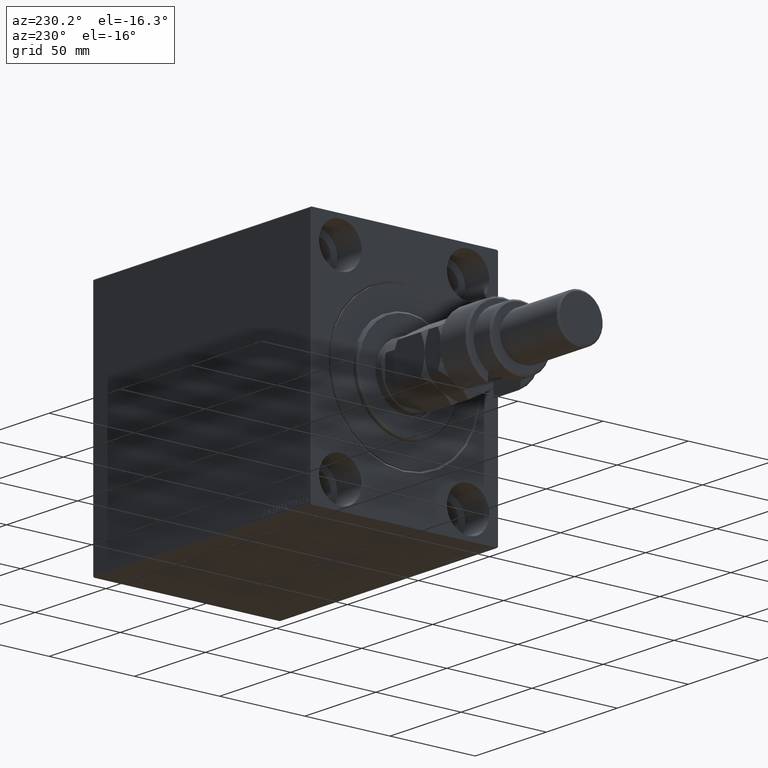
[diagram: clean part render]
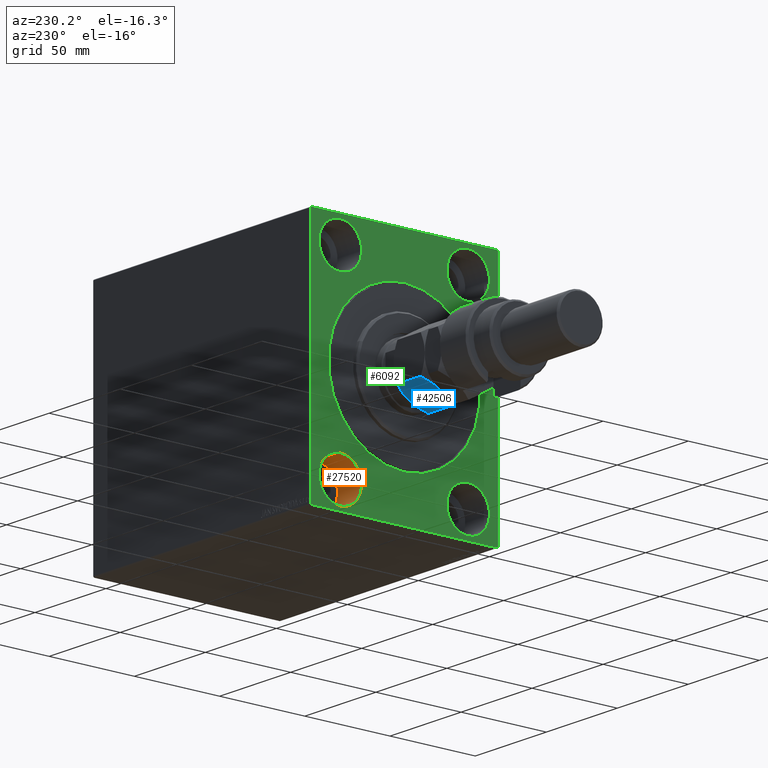
[diagram: same view with three faces highlighted in distinct colors, each labeled with its STEP entity id]
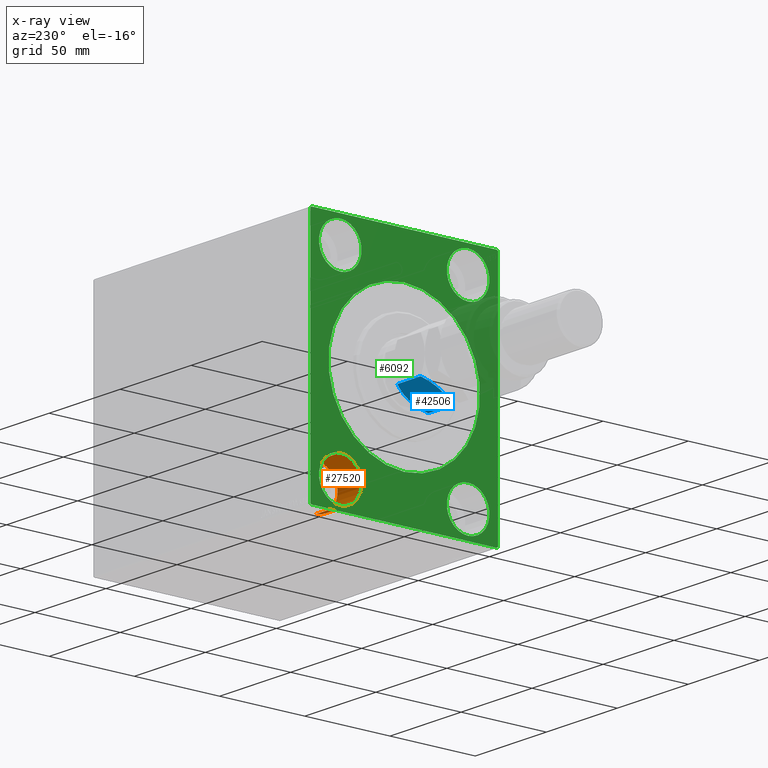
[diagram: x-ray of the same camera — body ghosted, the three highlighted faces saturated]
A machine part, auxiliary view with three faces highlighted in distinct colors.
The next image is the same camera in x-ray (body ghosted, the three faces saturated) — at least one of them is partly hidden behind the body in this view.
Their STEP definitions:

[orange] entity #27520 — the highlighted cylindrical surface (edge-blend (fillet) strip) has radius 12.5 mm, axis along (-1, -0, -0).
#1134 = ORIENTED_EDGE ( 'NONE', *, *, #32560, .T. ) ;
#1769 = EDGE_CURVE ( 'NONE', #6520, #29818, #35650, .T. ) ;
#4736 = CARTESIAN_POINT ( 'NONE',  ( 17.00000000000000000, 37.49999999999997868, -42.49999999999999289 ) ) ;
#6132 = CARTESIAN_POINT ( 'NONE',  ( 0.000000000000000000, 37.49999999999997868, -67.49999999999998579 ) ) ;
#6520 = VERTEX_POINT ( 'NONE', #38790 ) ;
#7239 = EDGE_CURVE ( 'NONE', #6520, #34621, #45471, .T. ) ;
#7569 = CARTESIAN_POINT ( 'NONE',  ( 17.00000000000000000, 37.49999999999997868, -42.49999999999999289 ) ) ;
#9159 = ORIENTED_EDGE ( 'NONE', *, *, #29859, .F. ) ;
#9512 = DIRECTION ( 'NONE',  ( 0.000000000000000000, 0.000000000000000000, 1.000000000000000000 ) ) ;
#10040 = EDGE_LOOP ( 'NONE', ( #43298, #14693, #1134, #9159 ) ) ;
#12100 = CIRCLE ( 'NONE', #24912, 12.49999999999999645 ) ;
#13351 = CARTESIAN_POINT ( 'NONE',  ( 17.00000000000000000, 37.49999999999997868, -67.49999999999998579 ) ) ;
#14693 = ORIENTED_EDGE ( 'NONE', *, *, #7239, .T. ) ;
#15293 = AXIS2_PLACEMENT_3D ( 'NONE', #18142, #29723, #43653 ) ;
#18142 = CARTESIAN_POINT ( 'NONE',  ( 17.00000000000000000, 37.49999999999997868, -54.99999999999999289 ) ) ;
#18283 = VECTOR ( 'NONE', #35523, 1000.000000000000000 ) ;
#20616 = DIRECTION ( 'NONE',  ( -1.000000000000000000, 0.000000000000000000, 0.000000000000000000 ) ) ;
#22040 = CARTESIAN_POINT ( 'NONE',  ( 0.000000000000000000, 37.49999999999997868, -42.49999999999999289 ) ) ;
#24912 = AXIS2_PLACEMENT_3D ( 'NONE', #41863, #20616, #9512 ) ;
#27520 = ADVANCED_FACE ( 'NONE', ( #31782 ), #42424, .F. ) ;
#27764 = AXIS2_PLACEMENT_3D ( 'NONE', #28474, #43107, #38881 ) ;
#28474 = CARTESIAN_POINT ( 'NONE',  ( 17.00000000000000000, 37.49999999999997868, -54.99999999999999289 ) ) ;
#29723 = DIRECTION ( 'NONE',  ( -1.000000000000000000, 0.000000000000000000, 0.000000000000000000 ) ) ;
#29818 = VERTEX_POINT ( 'NONE', #4736 ) ;
#29859 = EDGE_CURVE ( 'NONE', #29818, #34468, #43464, .T. ) ;
#31586 = VECTOR ( 'NONE', #36374, 1000.000000000000000 ) ;
#31782 = FACE_OUTER_BOUND ( 'NONE', #10040, .T. ) ;
#32560 = EDGE_CURVE ( 'NONE', #34621, #34468, #12100, .T. ) ;
#34468 = VERTEX_POINT ( 'NONE', #22040 ) ;
#34621 = VERTEX_POINT ( 'NONE', #6132 ) ;
#35523 = DIRECTION ( 'NONE',  ( -1.000000000000000000, -0.000000000000000000, -0.000000000000000000 ) ) ;
#35650 = CIRCLE ( 'NONE', #15293, 12.49999999999999645 ) ;
#36374 = DIRECTION ( 'NONE',  ( -1.000000000000000000, -0.000000000000000000, -0.000000000000000000 ) ) ;
#38790 = CARTESIAN_POINT ( 'NONE',  ( 17.00000000000000000, 37.49999999999997868, -67.49999999999998579 ) ) ;
#38881 = DIRECTION ( 'NONE',  ( 0.000000000000000000, 0.000000000000000000, 1.000000000000000000 ) ) ;
#41863 = CARTESIAN_POINT ( 'NONE',  ( 0.000000000000000000, 37.49999999999997868, -54.99999999999999289 ) ) ;
#42424 = CYLINDRICAL_SURFACE ( 'NONE', #27764, 12.49999999999999645 ) ;
#43107 = DIRECTION ( 'NONE',  ( -1.000000000000000000, -0.000000000000000000, -0.000000000000000000 ) ) ;
#43298 = ORIENTED_EDGE ( 'NONE', *, *, #1769, .F. ) ;
#43464 = LINE ( 'NONE', #7569, #31586 ) ;
#43653 = DIRECTION ( 'NONE',  ( 0.000000000000000000, 0.000000000000000000, 1.000000000000000000 ) ) ;
#45471 = LINE ( 'NONE', #13351, #18283 ) ;

[blue] entity #42506 — the highlighted planar face has unit normal (0, -0.5, 0.866).
#646 = CARTESIAN_POINT ( 'NONE',  ( -18.00000000000000000, 10.39230484541327293, 22.00000000000000000 ) ) ;
#1128 = VERTEX_POINT ( 'NONE', #39122 ) ;
#1941 = CARTESIAN_POINT ( 'NONE',  ( -18.00000000000000000, -7.070713019734865767, 20.67653729751676650 ) ) ;
#2437 = CARTESIAN_POINT ( 'NONE',  ( -18.00000000000000000, 0.000000000000000000, 0.000000000000000000 ) ) ;
#2472 = AXIS2_PLACEMENT_3D ( 'NONE', #646, #6790, #15045 ) ;
#2573 = CARTESIAN_POINT ( 'NONE',  ( -18.00000000000000355, 0.4570166227920097191, -1.873996868329094797E-14 ) ) ;
#2651 = CARTESIAN_POINT ( 'NONE',  ( -18.00000000000000000, 9.585738860786747750, 19.61867330148673716 ) ) ;
#2807 = CARTESIAN_POINT ( 'NONE',  ( -18.00000000000000000, 2.269920501599953511, 0.1372108013979898844 ) ) ;
#2906 = CARTESIAN_POINT ( 'NONE',  ( -17.99999999999999645, -7.496347219517973670, 1.494764402970788497 ) ) ;
#3927 = ORIENTED_EDGE ( 'NONE', *, *, #16804, .T. ) ;
#5133 = CARTESIAN_POINT ( 'NONE',  ( -18.00000000000000000, 0.000000000000000000, 0.000000000000000000 ) ) ;
#5238 = CARTESIAN_POINT ( 'NONE',  ( -18.00000000000000000, -4.484118396622227110, 21.46845322619605767 ) ) ;
#5747 = CARTESIAN_POINT ( 'NONE',  ( -18.00000000000000000, -3.606961701950821109, 0.2821992827987603869 ) ) ;
#5894 = VERTEX_POINT ( 'NONE', #35411 ) ;
#6106 = CARTESIAN_POINT ( 'NONE',  ( -17.99999999999999645, 1.820915739938816502, 0.08623745797432426363 ) ) ;
#6187 = CARTESIAN_POINT ( 'NONE',  ( -17.99999999999999289, 7.496347219517978999, 20.50523559702920195 ) ) ;
#6790 = DIRECTION ( 'NONE',  ( 1.000000000000000000, 0.000000000000000000, -0.000000000000000000 ) ) ;
#9124 = ORIENTED_EDGE ( 'NONE', *, *, #41015, .F. ) ;
#9704 = EDGE_CURVE ( 'NONE', #26809, #12539, #42539, .T. ) ;
#9728 = CARTESIAN_POINT ( 'NONE',  ( -18.00000000000000000, 10.39230484541327293, 19.21539030917347546 ) ) ;
#9953 = CARTESIAN_POINT ( 'NONE',  ( -17.99999999999999645, 5.777644679957247398, 21.10005375890244039 ) ) ;
#9976 = CARTESIAN_POINT ( 'NONE',  ( -18.00000000000000000, -7.068075135443438128, 1.333788718270820350 ) ) ;
#10018 = LINE ( 'NONE', #35512, #44214 ) ;
#12539 = VERTEX_POINT ( 'NONE', #27527 ) ;
#12551 = CARTESIAN_POINT ( 'NONE',  ( -18.00000000000000000, -9.585844502997481698, 19.61862048038136308 ) ) ;
#13294 = CARTESIAN_POINT ( 'NONE',  ( -18.00000000000000355, -1.830228188859414518, -1.798420353610330795E-14 ) ) ;
#14292 = CARTESIAN_POINT ( 'NONE',  ( -18.00000000000000000, 10.39230484541327293, 19.21539030917347546 ) ) ;
#15045 = DIRECTION ( 'NONE',  ( -0.000000000000000000, 0.000000000000000000, -1.000000000000000000 ) ) ;
#16088 = ORIENTED_EDGE ( 'NONE', *, *, #46229, .F. ) ;
#16127 = CARTESIAN_POINT ( 'NONE',  ( -18.00000000000000355, 1.830228188859417182, 22.00000000000001776 ) ) ;
#16504 = VERTEX_POINT ( 'NONE', #25883 ) ;
#16560 = CARTESIAN_POINT ( 'NONE',  ( -18.00000000000000000, -1.820915739938815392, 21.91376254202566543 ) ) ;
#16647 = LINE ( 'NONE', #44763, #30480 ) ;
#16804 = EDGE_CURVE ( 'NONE', #27554, #12539, #10018, .T. ) ;
#16967 = CARTESIAN_POINT ( 'NONE',  ( -18.00000000000000000, 9.585844502997485250, 2.381379519618630702 ) ) ;
#17023 = CARTESIAN_POINT ( 'NONE',  ( -18.00000000000000355, -3.606660380382266329, 21.66338348051975871 ) ) ;
#17065 = CARTESIAN_POINT ( 'NONE',  ( -18.00000000000000000, -9.585738860786737092, 2.381326698513256179 ) ) ;
#17198 = CARTESIAN_POINT ( 'NONE',  ( -18.00000000000000000, 0.000000000000000000, 0.000000000000000000 ) ) ;
#18906 = B_SPLINE_CURVE_WITH_KNOTS ( 'NONE', 3,
 ( #41871, #17065, #20622, #2906, #9976, #45179, #27242, #5747, #13294, #2437 ),
 .UNSPECIFIED., .F., .F.,
 ( 4, 2, 2, 2, 4 ),
 ( 0.02782233635826646123, 0.03053256470195757008, 0.03188767887380312277, 0.03324279304564867893, 0.03866324973303089663 ),
 .UNSPECIFIED. ) ;
#19482 = ORIENTED_EDGE ( 'NONE', *, *, #39287, .F. ) ;
#19642 = CARTESIAN_POINT ( 'NONE',  ( -18.00000000000000711, -6.216134505391694098, 20.97498393630432645 ) ) ;
#19662 = CARTESIAN_POINT ( 'NONE',  ( -18.00000000000000355, 3.606961701950826438, 21.71780071720124283 ) ) ;
#19730 = EDGE_CURVE ( 'NONE', #16504, #5894, #20522, .T. ) ;
#19968 = DIRECTION ( 'NONE',  ( -0.000000000000000000, -0.000000000000000000, -1.000000000000000000 ) ) ;
#20513 = CARTESIAN_POINT ( 'NONE',  ( -17.99999999999999645, 7.070713019734868432, 1.323462702483232833 ) ) ;
#20522 = B_SPLINE_CURVE_WITH_KNOTS ( 'NONE', 3,
 ( #20576, #37580, #37810, #16560, #30498, #17023, #5238, #19642, #1941, #31191, #12551, #30958 ),
 .UNSPECIFIED., .F., .F.,
 ( 4, 2, 2, 2, 2, 4 ),
 ( 0.03866324973303091050, 0.04001676336829057545, 0.04137027700355024040, 0.04407730427406957724, 0.04678433154458891408, 0.04949135881510824397 ),
 .UNSPECIFIED. ) ;
#20576 = CARTESIAN_POINT ( 'NONE',  ( -17.99999999999999645, 0.000000000000000000, 22.00000000000000000 ) ) ;
#20603 = CARTESIAN_POINT ( 'NONE',  ( -17.99999999999999645, 7.068075135443441681, 20.66621128172916499 ) ) ;
#20622 = CARTESIAN_POINT ( 'NONE',  ( -18.00000000000000000, -8.763088818352413156, 2.004854301028774266 ) ) ;
#20977 = CARTESIAN_POINT ( 'NONE',  ( -18.00000000000000711, 3.606660380382270326, 0.3366165194802389071 ) ) ;
#21355 = EDGE_LOOP ( 'NONE', ( #9124, #16088, #33853, #19482, #3927, #33514 ) ) ;
#24602 = B_SPLINE_CURVE_WITH_KNOTS ( 'NONE', 3,
 ( #9728, #2651, #38528, #6187, #20603, #45854, #9953, #19662, #16127, #44935 ),
 .UNSPECIFIED., .F., .F.,
 ( 4, 2, 2, 2, 4 ),
 ( 0.02782233635826646123, 0.03053256470195757355, 0.03188767887380312971, 0.03324279304564868587, 0.03866324973303091050 ),
 .UNSPECIFIED. ) ;
#25883 = CARTESIAN_POINT ( 'NONE',  ( -17.99999999999999645, 0.000000000000000000, 22.00000000000000000 ) ) ;
#26809 = VERTEX_POINT ( 'NONE', #5133 ) ;
#27242 = CARTESIAN_POINT ( 'NONE',  ( -18.00000000000000355, -5.777644679957243845, 0.8999462410975485049 ) ) ;
#27527 = CARTESIAN_POINT ( 'NONE',  ( -18.00000000000000000, 10.39230484541327115, 2.784609690826521433 ) ) ;
#27554 = VERTEX_POINT ( 'NONE', #14292 ) ;
#30480 = VECTOR ( 'NONE', #19968, 1000.000000000000000 ) ;
#30498 = CARTESIAN_POINT ( 'NONE',  ( -18.00000000000000000, -2.269920501599952622, 21.86278919860200531 ) ) ;
#30958 = CARTESIAN_POINT ( 'NONE',  ( -18.00000000000000000, -10.39230484541326582, 19.21539030917347901 ) ) ;
#31130 = CARTESIAN_POINT ( 'NONE',  ( -17.99999999999999645, 0.9155406990339314266, 0.01761543672925007520 ) ) ;
#31191 = CARTESIAN_POINT ( 'NONE',  ( -18.00000000000000355, -8.761367480501970562, 19.99593070559867414 ) ) ;
#31592 = CARTESIAN_POINT ( 'NONE',  ( -18.00000000000000000, 6.216134505391694098, 1.025016063695673774 ) ) ;
#32989 = PLANE ( 'NONE',  #2472 ) ;
#33514 = ORIENTED_EDGE ( 'NONE', *, *, #9704, .F. ) ;
#33853 = ORIENTED_EDGE ( 'NONE', *, *, #19730, .F. ) ;
#35055 = DIRECTION ( 'NONE',  ( -0.000000000000000000, -0.000000000000000000, -1.000000000000000000 ) ) ;
#35373 = CARTESIAN_POINT ( 'NONE',  ( -18.00000000000000355, 4.484118396622230662, 0.5315467738039389989 ) ) ;
#35411 = CARTESIAN_POINT ( 'NONE',  ( -18.00000000000000000, -10.39230484541326582, 19.21539030917347901 ) ) ;
#35512 = CARTESIAN_POINT ( 'NONE',  ( -18.00000000000000000, 10.39230484541327293, 22.00000000000000000 ) ) ;
#37580 = CARTESIAN_POINT ( 'NONE',  ( -18.00000000000000355, -0.4570166227920087199, 22.00000000000001421 ) ) ;
#37810 = CARTESIAN_POINT ( 'NONE',  ( -18.00000000000000000, -0.9155406990339308715, 21.98238456327074530 ) ) ;
#38528 = CARTESIAN_POINT ( 'NONE',  ( -18.00000000000000000, 8.763088818352416709, 19.99514569897121774 ) ) ;
#39122 = CARTESIAN_POINT ( 'NONE',  ( -18.00000000000000000, -10.39230484541326582, 2.784609690826517436 ) ) ;
#39287 = EDGE_CURVE ( 'NONE', #27554, #16504, #24602, .T. ) ;
#40068 = FACE_OUTER_BOUND ( 'NONE', #21355, .T. ) ;
#41015 = EDGE_CURVE ( 'NONE', #1128, #26809, #18906, .T. ) ;
#41871 = CARTESIAN_POINT ( 'NONE',  ( -18.00000000000000000, -10.39230484541326582, 2.784609690826517436 ) ) ;
#42466 = CARTESIAN_POINT ( 'NONE',  ( -18.00000000000000355, 8.761367480501975891, 2.004069294401323198 ) ) ;
#42506 = ADVANCED_FACE ( 'NONE', ( #40068 ), #32989, .F. ) ;
#42539 = B_SPLINE_CURVE_WITH_KNOTS ( 'NONE', 3,
 ( #17198, #2573, #31130, #6106, #2807, #20977, #35373, #31592, #20513, #42466, #16967, #46002 ),
 .UNSPECIFIED., .F., .F.,
 ( 4, 2, 2, 2, 2, 4 ),
 ( 0.03866324973303089663, 0.04001676336829056158, 0.04137027700355023346, 0.04407730427406956336, 0.04678433154458890020, 0.04949135881510823010 ),
 .UNSPECIFIED. ) ;
#44214 = VECTOR ( 'NONE', #35055, 1000.000000000000000 ) ;
#44763 = CARTESIAN_POINT ( 'NONE',  ( -18.00000000000000000, -10.39230484541326582, 22.00000000000000000 ) ) ;
#44935 = CARTESIAN_POINT ( 'NONE',  ( -17.99999999999999645, 0.000000000000000000, 22.00000000000000000 ) ) ;
#45179 = CARTESIAN_POINT ( 'NONE',  ( -18.00000000000000000, -6.209292796908479239, 1.036623049275358754 ) ) ;
#45854 = CARTESIAN_POINT ( 'NONE',  ( -18.00000000000000711, 6.209292796908482792, 20.96337695072463703 ) ) ;
#46002 = CARTESIAN_POINT ( 'NONE',  ( -18.00000000000000000, 10.39230484541327115, 2.784609690826521433 ) ) ;
#46229 = EDGE_CURVE ( 'NONE', #5894, #1128, #16647, .T. ) ;

[green] entity #6092 — the highlighted planar face has unit normal (1, 0, 0).
#613 = ORIENTED_EDGE ( 'NONE', *, *, #9912, .T. ) ;
#785 = ORIENTED_EDGE ( 'NONE', *, *, #3620, .F. ) ;
#1200 = CARTESIAN_POINT ( 'NONE',  ( 0.000000000000000000, 37.50000000000000711, 42.50000000000000711 ) ) ;
#1426 = CARTESIAN_POINT ( 'NONE',  ( 0.000000000000000000, 0.000000000000000000, 44.50000000000004263 ) ) ;
#1513 = EDGE_LOOP ( 'NONE', ( #41069, #33114 ) ) ;
#1795 = AXIS2_PLACEMENT_3D ( 'NONE', #10402, #32350, #39209 ) ;
#2760 = ORIENTED_EDGE ( 'NONE', *, *, #38961, .F. ) ;
#2927 = VERTEX_POINT ( 'NONE', #41761 ) ;
#3081 = CARTESIAN_POINT ( 'NONE',  ( 0.000000000000000000, 37.50000000000000711, 55.00000000000000711 ) ) ;
#3367 = DIRECTION ( 'NONE',  ( -1.000000000000000000, 0.000000000000000000, 0.000000000000000000 ) ) ;
#3500 = VERTEX_POINT ( 'NONE', #17528 ) ;
#3620 = EDGE_CURVE ( 'NONE', #34468, #34621, #21366, .T. ) ;
#4529 = CARTESIAN_POINT ( 'NONE',  ( 0.000000000000000000, -55.00000000000000711, 69.99999999999998579 ) ) ;
#4637 = FACE_BOUND ( 'NONE', #1513, .T. ) ;
#4721 = ORIENTED_EDGE ( 'NONE', *, *, #34698, .F. ) ;
#4773 = DIRECTION ( 'NONE',  ( -1.000000000000000000, 0.000000000000000000, 0.000000000000000000 ) ) ;
#4791 = VERTEX_POINT ( 'NONE', #17176 ) ;
#4793 = CARTESIAN_POINT ( 'NONE',  ( 0.000000000000000000, -37.50000000000002132, -67.49999999999998579 ) ) ;
#4885 = CARTESIAN_POINT ( 'NONE',  ( 0.000000000000000000, 54.49999999999999289, 70.00000000000000000 ) ) ;
#5207 = CARTESIAN_POINT ( 'NONE',  ( 0.000000000000000000, -54.50000000000000711, 69.99999999999998579 ) ) ;
#5577 = DIRECTION ( 'NONE',  ( 0.000000000000000000, 0.000000000000000000, -1.000000000000000000 ) ) ;
#5884 = AXIS2_PLACEMENT_3D ( 'NONE', #16265, #30185, #26662 ) ;
#5904 = VERTEX_POINT ( 'NONE', #31629 ) ;
#6092 = ADVANCED_FACE ( 'NONE', ( #30367, #12414, #45012, #8887, #4637, #12652 ), #41466, .F. ) ;
#6132 = CARTESIAN_POINT ( 'NONE',  ( 0.000000000000000000, 37.49999999999997868, -67.49999999999998579 ) ) ;
#6206 = DIRECTION ( 'NONE',  ( -0.000000000000000000, 0.7071067811865474617, -0.7071067811865474617 ) ) ;
#6437 = LINE ( 'NONE', #28156, #26577 ) ;
#6866 = AXIS2_PLACEMENT_3D ( 'NONE', #31272, #38124, #20415 ) ;
#7285 = DIRECTION ( 'NONE',  ( 0.000000000000000000, -1.000000000000000000, -1.261617073437677999E-16 ) ) ;
#7590 = VECTOR ( 'NONE', #35271, 1000.000000000000000 ) ;
#7879 = VERTEX_POINT ( 'NONE', #4885 ) ;
#8092 = EDGE_CURVE ( 'NONE', #25248, #41943, #10042, .T. ) ;
#8704 = LINE ( 'NONE', #44827, #24150 ) ;
#8887 = FACE_BOUND ( 'NONE', #13758, .T. ) ;
#8934 = CARTESIAN_POINT ( 'NONE',  ( 0.000000000000000000, -37.50000000000002132, -42.49999999999999289 ) ) ;
#9110 = CARTESIAN_POINT ( 'NONE',  ( 0.000000000000000000, 0.000000000000000000, 0.000000000000000000 ) ) ;
#9141 = ORIENTED_EDGE ( 'NONE', *, *, #25436, .T. ) ;
#9230 = EDGE_CURVE ( 'NONE', #16322, #22450, #32631, .T. ) ;
#9338 = EDGE_CURVE ( 'NONE', #12873, #34969, #10031, .T. ) ;
#9512 = DIRECTION ( 'NONE',  ( 0.000000000000000000, 0.000000000000000000, 1.000000000000000000 ) ) ;
#9569 = ORIENTED_EDGE ( 'NONE', *, *, #32289, .F. ) ;
#9912 = EDGE_CURVE ( 'NONE', #5904, #33738, #17607, .T. ) ;
#10031 = CIRCLE ( 'NONE', #33420, 12.49999999999999645 ) ;
#10042 = LINE ( 'NONE', #24684, #30365 ) ;
#10402 = CARTESIAN_POINT ( 'NONE',  ( 0.000000000000000000, 0.000000000000000000, 0.000000000000000000 ) ) ;
#10503 = VECTOR ( 'NONE', #7285, 1000.000000000000000 ) ;
#10816 = LINE ( 'NONE', #39637, #10503 ) ;
#10841 = DIRECTION ( 'NONE',  ( 0.000000000000000000, 0.000000000000000000, 1.000000000000000000 ) ) ;
#10857 = EDGE_CURVE ( 'NONE', #23881, #32231, #20665, .T. ) ;
#11138 = DIRECTION ( 'NONE',  ( 0.000000000000000000, 0.000000000000000000, -1.000000000000000000 ) ) ;
#12100 = CIRCLE ( 'NONE', #24912, 12.49999999999999645 ) ;
#12154 = EDGE_CURVE ( 'NONE', #2927, #32663, #18412, .T. ) ;
#12167 = ORIENTED_EDGE ( 'NONE', *, *, #9230, .F. ) ;
#12414 = FACE_BOUND ( 'NONE', #46468, .T. ) ;
#12466 = DIRECTION ( 'NONE',  ( 0.000000000000000000, -1.982541115402065110E-16, 1.000000000000000000 ) ) ;
#12652 = FACE_OUTER_BOUND ( 'NONE', #27336, .T. ) ;
#12758 = EDGE_CURVE ( 'NONE', #16322, #31984, #14407, .T. ) ;
#12873 = VERTEX_POINT ( 'NONE', #1200 ) ;
#13758 = EDGE_LOOP ( 'NONE', ( #16897, #27115 ) ) ;
#14014 = ORIENTED_EDGE ( 'NONE', *, *, #12758, .T. ) ;
#14386 = ORIENTED_EDGE ( 'NONE', *, *, #32560, .F. ) ;
#14407 = LINE ( 'NONE', #15364, #35014 ) ;
#15093 = ORIENTED_EDGE ( 'NONE', *, *, #37271, .F. ) ;
#15364 = CARTESIAN_POINT ( 'NONE',  ( 0.000000000000000000, -55.00000000000000711, 69.49999999999998579 ) ) ;
#15549 = DIRECTION ( 'NONE',  ( -1.000000000000000000, 0.000000000000000000, 0.000000000000000000 ) ) ;
#15596 = CARTESIAN_POINT ( 'NONE',  ( 0.000000000000000000, -54.50000000000003553, -70.00000000000002842 ) ) ;
#15602 = CARTESIAN_POINT ( 'NONE',  ( 0.000000000000000000, -55.00000000000000711, 69.49999999999998579 ) ) ;
#15782 = CARTESIAN_POINT ( 'NONE',  ( 0.000000000000000000, -37.50000000000000711, 55.00000000000000711 ) ) ;
#16265 = CARTESIAN_POINT ( 'NONE',  ( 0.000000000000000000, 0.000000000000000000, 0.000000000000000000 ) ) ;
#16322 = VERTEX_POINT ( 'NONE', #15602 ) ;
#16897 = ORIENTED_EDGE ( 'NONE', *, *, #42121, .F. ) ;
#17176 = CARTESIAN_POINT ( 'NONE',  ( 0.000000000000000000, -54.50000000000003553, -70.00000000000002842 ) ) ;
#17178 = CIRCLE ( 'NONE', #5884, 44.50000000000004263 ) ;
#17528 = CARTESIAN_POINT ( 'NONE',  ( 0.000000000000000000, 54.99999999999999289, 69.50000000000000000 ) ) ;
#17549 = CARTESIAN_POINT ( 'NONE',  ( 0.000000000000000000, -55.00000000000000711, -70.00000000000002842 ) ) ;
#17607 = CIRCLE ( 'NONE', #1795, 44.50000000000004263 ) ;
#17828 = CARTESIAN_POINT ( 'NONE',  ( 0.000000000000000000, -55.00000000000000711, -69.50000000000007105 ) ) ;
#17963 = CARTESIAN_POINT ( 'NONE',  ( 0.000000000000000000, -37.50000000000002132, -54.99999999999999289 ) ) ;
#18412 = CIRCLE ( 'NONE', #41785, 12.49999999999999645 ) ;
#18586 = ORIENTED_EDGE ( 'NONE', *, *, #12154, .F. ) ;
#18898 = LINE ( 'NONE', #15596, #19181 ) ;
#18939 = CIRCLE ( 'NONE', #27262, 12.49999999999999645 ) ;
#19181 = VECTOR ( 'NONE', #29290, 999.9999999999998863 ) ;
#19934 = DIRECTION ( 'NONE',  ( -1.000000000000000000, 0.000000000000000000, 0.000000000000000000 ) ) ;
#20415 = DIRECTION ( 'NONE',  ( 0.000000000000000000, 0.000000000000000000, 1.000000000000000000 ) ) ;
#20616 = DIRECTION ( 'NONE',  ( -1.000000000000000000, 0.000000000000000000, 0.000000000000000000 ) ) ;
#20665 = CIRCLE ( 'NONE', #33453, 12.49999999999999645 ) ;
#21140 = DIRECTION ( 'NONE',  ( 0.000000000000000000, -0.7071067811865474617, -0.7071067811865474617 ) ) ;
#21366 = CIRCLE ( 'NONE', #24969, 12.49999999999999645 ) ;
#21877 = CARTESIAN_POINT ( 'NONE',  ( 0.000000000000000000, 37.50000000000000711, 67.50000000000000000 ) ) ;
#22040 = CARTESIAN_POINT ( 'NONE',  ( 0.000000000000000000, 37.49999999999997868, -42.49999999999999289 ) ) ;
#22450 = VERTEX_POINT ( 'NONE', #17828 ) ;
#23881 = VERTEX_POINT ( 'NONE', #4793 ) ;
#24150 = VECTOR ( 'NONE', #12466, 1000.000000000000000 ) ;
#24181 = ORIENTED_EDGE ( 'NONE', *, *, #45635, .T. ) ;
#24684 = CARTESIAN_POINT ( 'NONE',  ( 0.000000000000000000, 55.00000000000002132, -69.50000000000000000 ) ) ;
#24912 = AXIS2_PLACEMENT_3D ( 'NONE', #41863, #20616, #9512 ) ;
#24969 = AXIS2_PLACEMENT_3D ( 'NONE', #36405, #3367, #32159 ) ;
#25248 = VERTEX_POINT ( 'NONE', #42264 ) ;
#25436 = EDGE_CURVE ( 'NONE', #33738, #5904, #17178, .T. ) ;
#25517 = DIRECTION ( 'NONE',  ( -0.000000000000000000, 0.7071067811865474617, 0.7071067811865474617 ) ) ;
#26577 = VECTOR ( 'NONE', #6206, 1000.000000000000114 ) ;
#26662 = DIRECTION ( 'NONE',  ( 0.000000000000000000, 0.000000000000000000, -1.000000000000000000 ) ) ;
#27115 = ORIENTED_EDGE ( 'NONE', *, *, #9338, .F. ) ;
#27262 = AXIS2_PLACEMENT_3D ( 'NONE', #44353, #41280, #39924 ) ;
#27336 = EDGE_LOOP ( 'NONE', ( #12167, #14014, #4721, #34142, #9569, #42646, #15093, #24181 ) ) ;
#28021 = EDGE_LOOP ( 'NONE', ( #18586, #2760 ) ) ;
#28156 = CARTESIAN_POINT ( 'NONE',  ( 0.000000000000000000, 54.49999999999999289, 70.00000000000000000 ) ) ;
#28361 = DIRECTION ( 'NONE',  ( 0.000000000000000000, 0.000000000000000000, 1.000000000000000000 ) ) ;
#29057 = DIRECTION ( 'NONE',  ( -1.000000000000000000, 0.000000000000000000, 0.000000000000000000 ) ) ;
#29290 = DIRECTION ( 'NONE',  ( -0.000000000000000000, -0.7071067811865574537, 0.7071067811865376918 ) ) ;
#29384 = CARTESIAN_POINT ( 'NONE',  ( 0.000000000000000000, 54.50000000000002132, -70.00000000000000000 ) ) ;
#29485 = DIRECTION ( 'NONE',  ( 0.000000000000000000, 0.000000000000000000, 1.000000000000000000 ) ) ;
#30031 = DIRECTION ( 'NONE',  ( 0.000000000000000000, 0.000000000000000000, 1.000000000000000000 ) ) ;
#30185 = DIRECTION ( 'NONE',  ( 1.000000000000000000, 0.000000000000000000, 0.000000000000000000 ) ) ;
#30365 = VECTOR ( 'NONE', #21140, 1000.000000000000114 ) ;
#30367 = FACE_BOUND ( 'NONE', #33709, .T. ) ;
#31272 = CARTESIAN_POINT ( 'NONE',  ( 0.000000000000000000, -37.50000000000000711, 55.00000000000000711 ) ) ;
#31629 = CARTESIAN_POINT ( 'NONE',  ( 0.000000000000000000, 5.449678256205726715E-15, -44.50000000000004263 ) ) ;
#31984 = VERTEX_POINT ( 'NONE', #5207 ) ;
#32159 = DIRECTION ( 'NONE',  ( 0.000000000000000000, 0.000000000000000000, 1.000000000000000000 ) ) ;
#32231 = VERTEX_POINT ( 'NONE', #8934 ) ;
#32289 = EDGE_CURVE ( 'NONE', #25248, #3500, #8704, .T. ) ;
#32350 = DIRECTION ( 'NONE',  ( 1.000000000000000000, 0.000000000000000000, 0.000000000000000000 ) ) ;
#32560 = EDGE_CURVE ( 'NONE', #34621, #34468, #12100, .T. ) ;
#32631 = LINE ( 'NONE', #4529, #43194 ) ;
#32663 = VERTEX_POINT ( 'NONE', #35006 ) ;
#33114 = ORIENTED_EDGE ( 'NONE', *, *, #10857, .F. ) ;
#33420 = AXIS2_PLACEMENT_3D ( 'NONE', #40655, #4773, #30031 ) ;
#33453 = AXIS2_PLACEMENT_3D ( 'NONE', #17963, #29057, #28361 ) ;
#33709 = EDGE_LOOP ( 'NONE', ( #9141, #613 ) ) ;
#33738 = VERTEX_POINT ( 'NONE', #1426 ) ;
#34142 = ORIENTED_EDGE ( 'NONE', *, *, #41059, .T. ) ;
#34468 = VERTEX_POINT ( 'NONE', #22040 ) ;
#34621 = VERTEX_POINT ( 'NONE', #6132 ) ;
#34698 = EDGE_CURVE ( 'NONE', #7879, #31984, #10816, .T. ) ;
#34896 = AXIS2_PLACEMENT_3D ( 'NONE', #3081, #19934, #10841 ) ;
#34969 = VERTEX_POINT ( 'NONE', #21877 ) ;
#35006 = CARTESIAN_POINT ( 'NONE',  ( 0.000000000000000000, -37.50000000000000711, 42.50000000000000711 ) ) ;
#35014 = VECTOR ( 'NONE', #25517, 1000.000000000000114 ) ;
#35271 = DIRECTION ( 'NONE',  ( 0.000000000000000000, 1.000000000000000000, 2.523234146875355012E-16 ) ) ;
#35956 = LINE ( 'NONE', #17549, #7590 ) ;
#36405 = CARTESIAN_POINT ( 'NONE',  ( 0.000000000000000000, 37.49999999999997868, -54.99999999999999289 ) ) ;
#37271 = EDGE_CURVE ( 'NONE', #4791, #41943, #35956, .T. ) ;
#37838 = AXIS2_PLACEMENT_3D ( 'NONE', #9110, #37916, #5577 ) ;
#37916 = DIRECTION ( 'NONE',  ( 1.000000000000000000, 0.000000000000000000, 0.000000000000000000 ) ) ;
#38124 = DIRECTION ( 'NONE',  ( -1.000000000000000000, 0.000000000000000000, 0.000000000000000000 ) ) ;
#38961 = EDGE_CURVE ( 'NONE', #32663, #2927, #46110, .T. ) ;
#39209 = DIRECTION ( 'NONE',  ( 0.000000000000000000, 0.000000000000000000, -1.000000000000000000 ) ) ;
#39496 = EDGE_CURVE ( 'NONE', #32231, #23881, #18939, .T. ) ;
#39637 = CARTESIAN_POINT ( 'NONE',  ( 0.000000000000000000, 54.99999999999999289, 70.00000000000000000 ) ) ;
#39924 = DIRECTION ( 'NONE',  ( 0.000000000000000000, 0.000000000000000000, 1.000000000000000000 ) ) ;
#40655 = CARTESIAN_POINT ( 'NONE',  ( 0.000000000000000000, 37.50000000000000711, 55.00000000000000711 ) ) ;
#41059 = EDGE_CURVE ( 'NONE', #7879, #3500, #6437, .T. ) ;
#41069 = ORIENTED_EDGE ( 'NONE', *, *, #39496, .F. ) ;
#41280 = DIRECTION ( 'NONE',  ( -1.000000000000000000, 0.000000000000000000, 0.000000000000000000 ) ) ;
#41466 = PLANE ( 'NONE',  #37838 ) ;
#41761 = CARTESIAN_POINT ( 'NONE',  ( 0.000000000000000000, -37.50000000000000711, 67.50000000000000000 ) ) ;
#41785 = AXIS2_PLACEMENT_3D ( 'NONE', #15782, #15549, #29485 ) ;
#41863 = CARTESIAN_POINT ( 'NONE',  ( 0.000000000000000000, 37.49999999999997868, -54.99999999999999289 ) ) ;
#41943 = VERTEX_POINT ( 'NONE', #29384 ) ;
#42121 = EDGE_CURVE ( 'NONE', #34969, #12873, #42452, .T. ) ;
#42264 = CARTESIAN_POINT ( 'NONE',  ( 0.000000000000000000, 55.00000000000002132, -69.50000000000000000 ) ) ;
#42452 = CIRCLE ( 'NONE', #34896, 12.49999999999999645 ) ;
#42646 = ORIENTED_EDGE ( 'NONE', *, *, #8092, .T. ) ;
#43194 = VECTOR ( 'NONE', #11138, 1000.000000000000000 ) ;
#44353 = CARTESIAN_POINT ( 'NONE',  ( 0.000000000000000000, -37.50000000000002132, -54.99999999999999289 ) ) ;
#44827 = CARTESIAN_POINT ( 'NONE',  ( 0.000000000000000000, 55.00000000000002132, -70.00000000000000000 ) ) ;
#45012 = FACE_BOUND ( 'NONE', #28021, .T. ) ;
#45635 = EDGE_CURVE ( 'NONE', #4791, #22450, #18898, .T. ) ;
#46110 = CIRCLE ( 'NONE', #6866, 12.49999999999999645 ) ;
#46468 = EDGE_LOOP ( 'NONE', ( #785, #14386 ) ) ;